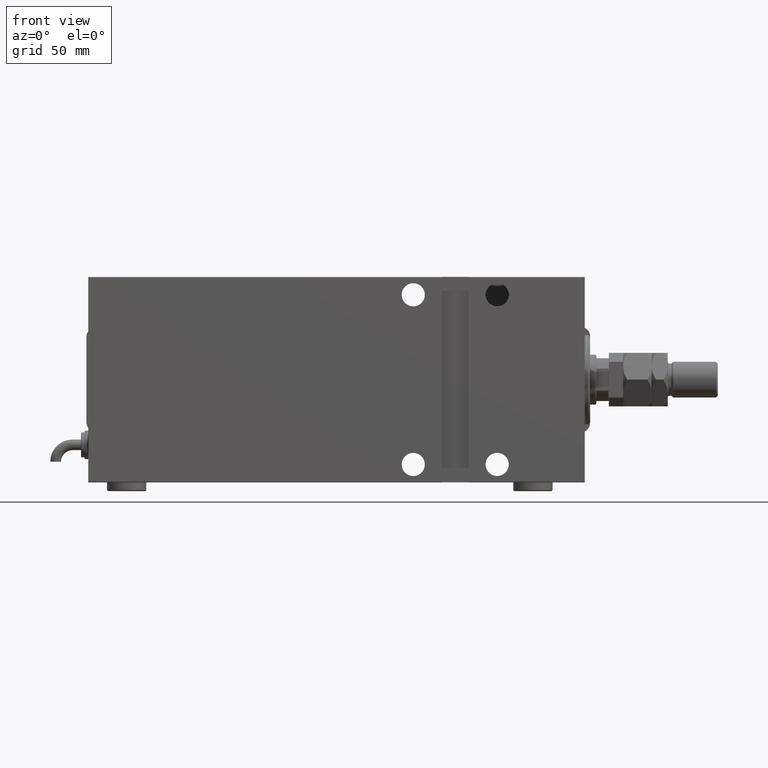
[diagram: clean part render]
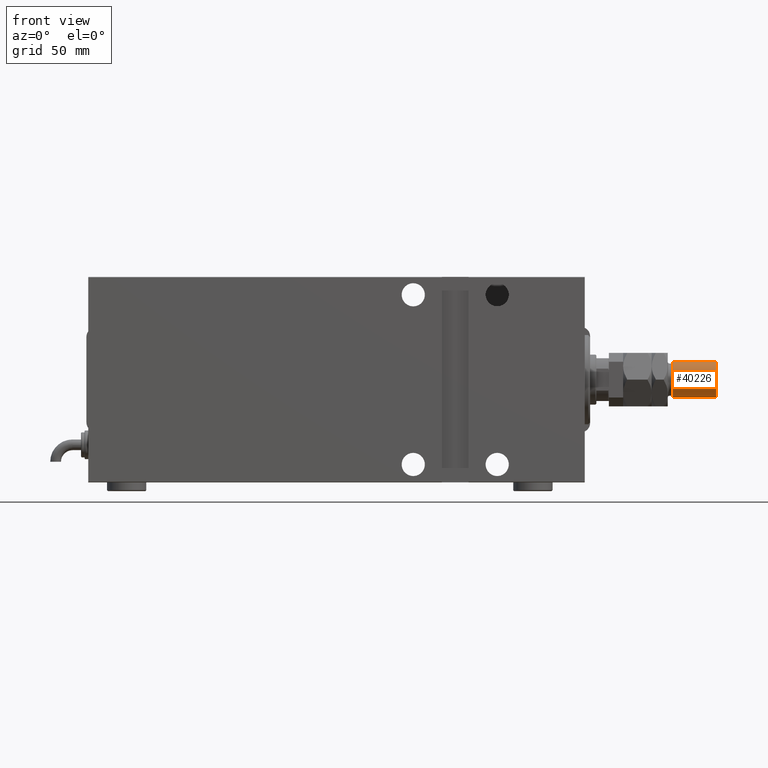
[diagram: same view with one face highlighted and labeled with its STEP entity id]
A machine part, front view. The second image highlights one B-rep face of the part: STEP entity #40226.
In plain terms, the highlighted cylindrical surface (edge-blend (fillet) strip) has radius 10 mm, axis along (-1, -0, 0).
Its self-contained STEP definition (entity closure, byte-faithful):
#1668 = FACE_OUTER_BOUND ( 'NONE', #42253, .T. ) ;
#5715 = CARTESIAN_POINT ( 'NONE',  ( 0.000000000000000000, 0.000000000000000000, 53.00000000000000711 ) ) ;
#6094 = VERTEX_POINT ( 'NONE', #12350 ) ;
#6197 = VECTOR ( 'NONE', #54944, 1000.000000000000000 ) ;
#6367 = DIRECTION ( 'NONE',  ( 0.000000000000000000, 0.000000000000000000, -1.000000000000000000 ) ) ;
#6403 = VERTEX_POINT ( 'NONE', #16612 ) ;
#7349 = LINE ( 'NONE', #22790, #6197 ) ;
#10224 = LINE ( 'NONE', #15750, #57667 ) ;
#10603 = EDGE_CURVE ( 'NONE', #6094, #36932, #40474, .T. ) ;
#12350 = CARTESIAN_POINT ( 'NONE',  ( -10.00000000000000000, 0.000000000000000000, 28.00000000000002487 ) ) ;
#12606 = CARTESIAN_POINT ( 'NONE',  ( 10.00000000000000000, 1.224646799147353059E-15, 52.00000000000004974 ) ) ;
#15750 = CARTESIAN_POINT ( 'NONE',  ( 10.00000000000000000, 1.224646799147353059E-15, 53.00000000000000711 ) ) ;
#15795 = DIRECTION ( 'NONE',  ( 1.000000000000000000, 0.000000000000000000, 0.000000000000000000 ) ) ;
#16612 = CARTESIAN_POINT ( 'NONE',  ( -10.00000000000000000, 0.000000000000000000, 52.00000000000004974 ) ) ;
#18312 = CIRCLE ( 'NONE', #31138, 10.00000000000000000 ) ;
#22790 = CARTESIAN_POINT ( 'NONE',  ( -10.00000000000000000, 0.000000000000000000, 53.00000000000000711 ) ) ;
#25212 = DIRECTION ( 'NONE',  ( 1.000000000000000000, 0.000000000000000000, 0.000000000000000000 ) ) ;
#28832 = AXIS2_PLACEMENT_3D ( 'NONE', #5715, #58243, #43413 ) ;
#29854 = CARTESIAN_POINT ( 'NONE',  ( 0.000000000000000000, 0.000000000000000000, 52.00000000000004974 ) ) ;
#31138 = AXIS2_PLACEMENT_3D ( 'NONE', #29854, #6367, #25212 ) ;
#32050 = VERTEX_POINT ( 'NONE', #12606 ) ;
#33718 = DIRECTION ( 'NONE',  ( -0.000000000000000000, -0.000000000000000000, -1.000000000000000000 ) ) ;
#36932 = VERTEX_POINT ( 'NONE', #36998 ) ;
#36998 = CARTESIAN_POINT ( 'NONE',  ( 10.00000000000000000, 1.224646799147353059E-15, 28.00000000000002487 ) ) ;
#38400 = DIRECTION ( 'NONE',  ( -0.000000000000000000, -0.000000000000000000, 1.000000000000000000 ) ) ;
#39003 = CARTESIAN_POINT ( 'NONE',  ( 0.000000000000000000, 0.000000000000000000, 28.00000000000002487 ) ) ;
#39031 = EDGE_CURVE ( 'NONE', #6403, #6094, #7349, .T. ) ;
#39462 = ORIENTED_EDGE ( 'NONE', *, *, #45615, .F. ) ;
#40226 = ADVANCED_FACE ( 'NONE', ( #1668 ), #48050, .T. ) ;
#40474 = CIRCLE ( 'NONE', #59247, 10.00000000000000000 ) ;
#42253 = EDGE_LOOP ( 'NONE', ( #39462, #52541, #57304, #50007 ) ) ;
#43413 = DIRECTION ( 'NONE',  ( -1.000000000000000000, 0.000000000000000000, 0.000000000000000000 ) ) ;
#45615 = EDGE_CURVE ( 'NONE', #32050, #36932, #10224, .T. ) ;
#48050 = CYLINDRICAL_SURFACE ( 'NONE', #28832, 10.00000000000000000 ) ;
#50007 = ORIENTED_EDGE ( 'NONE', *, *, #10603, .T. ) ;
#52541 = ORIENTED_EDGE ( 'NONE', *, *, #53051, .T. ) ;
#53051 = EDGE_CURVE ( 'NONE', #32050, #6403, #18312, .T. ) ;
#54944 = DIRECTION ( 'NONE',  ( -0.000000000000000000, -0.000000000000000000, -1.000000000000000000 ) ) ;
#57304 = ORIENTED_EDGE ( 'NONE', *, *, #39031, .T. ) ;
#57667 = VECTOR ( 'NONE', #33718, 1000.000000000000000 ) ;
#58243 = DIRECTION ( 'NONE',  ( -0.000000000000000000, -0.000000000000000000, -1.000000000000000000 ) ) ;
#59247 = AXIS2_PLACEMENT_3D ( 'NONE', #39003, #38400, #15795 ) ;